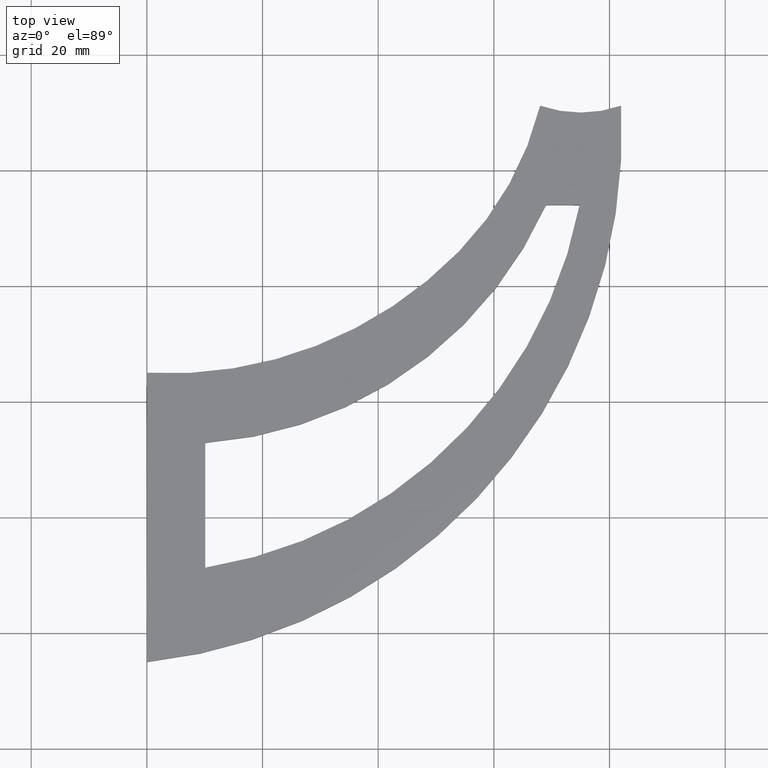
[diagram: clean part render]
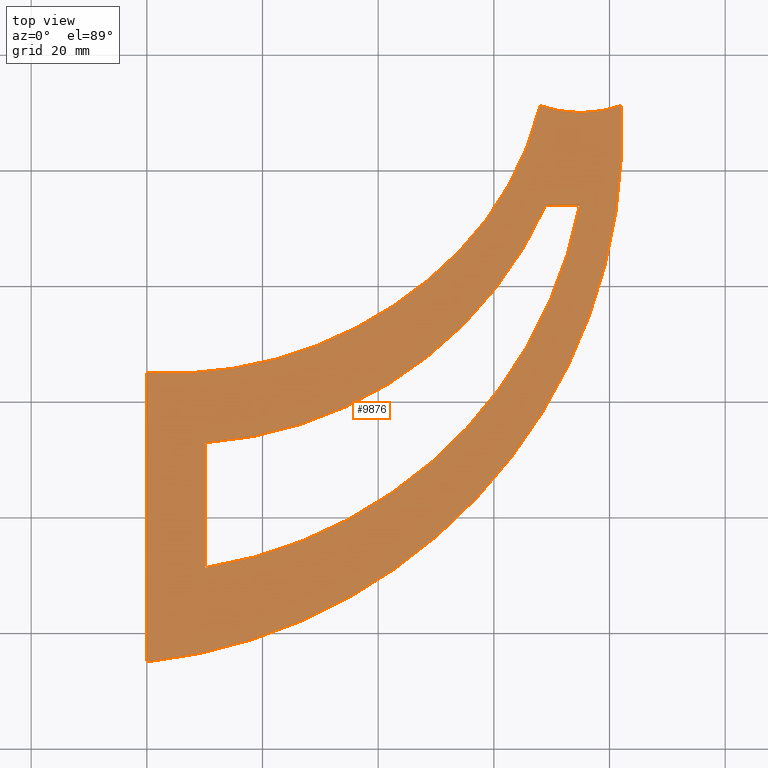
[diagram: same view with one face highlighted and labeled with its STEP entity id]
A machine part, top view. The second image highlights one B-rep face of the part: STEP entity #9876.
In plain terms, the highlighted planar face has unit normal (-0, 0, 1).
Its self-contained STEP definition (entity closure, byte-faithful):
#76 = EDGE_CURVE ( 'NONE', #7259, #8472, #6269, .T. ) ;
#103 = VERTEX_POINT ( 'NONE', #4812 ) ;
#169 = VECTOR ( 'NONE', #3922, 1000.000000000000000 ) ;
#220 = CARTESIAN_POINT ( 'NONE',  ( 2.220446049250313081E-13, -24.99999999999879918, 2.000000000000000000 ) ) ;
#409 = CARTESIAN_POINT ( 'NONE',  ( 69.01433309437241803, 54.00000000000000711, 2.000000000000000000 ) ) ;
#424 = CARTESIAN_POINT ( 'NONE',  ( 74.81433309437242940, 54.00000000000000711, 2.000000000000000000 ) ) ;
#786 = DIRECTION ( 'NONE',  ( 1.000000000000000000, 0.000000000000000000, 0.000000000000000000 ) ) ;
#887 = EDGE_CURVE ( 'NONE', #7259, #103, #2160, .T. ) ;
#1107 = DIRECTION ( 'NONE',  ( 1.000000000000000000, 0.000000000000000000, 0.000000000000000000 ) ) ;
#1724 = ORIENTED_EDGE ( 'NONE', *, *, #4154, .T. ) ;
#1754 = EDGE_CURVE ( 'NONE', #6150, #11341, #9519, .T. ) ;
#1888 = CIRCLE ( 'NONE', #9805, 21.19999999999999574 ) ;
#1899 = VERTEX_POINT ( 'NONE', #7404 ) ;
#2143 = DIRECTION ( 'NONE',  ( 1.000000000000000000, 0.000000000000000000, 0.000000000000000000 ) ) ;
#2160 = LINE ( 'NONE', #9274, #169 ) ;
#2443 = VERTEX_POINT ( 'NONE', #10656 ) ;
#2565 = DIRECTION ( 'NONE',  ( -0.000000000000000000, 0.000000000000000000, 1.000000000000000000 ) ) ;
#3004 = DIRECTION ( 'NONE',  ( -0.000000000000000000, 0.000000000000000000, 1.000000000000000000 ) ) ;
#3285 = CARTESIAN_POINT ( 'NONE',  ( 81.99999999999997158, 71.18900302333739205, 2.000000000000000000 ) ) ;
#3475 = EDGE_CURVE ( 'NONE', #6150, #9880, #8648, .T. ) ;
#3553 = CARTESIAN_POINT ( 'NONE',  ( 1.110223024625135740E-12, -3.944304526105082560E-26, 2.000000000000000000 ) ) ;
#3564 = CARTESIAN_POINT ( 'NONE',  ( 0.000000000000000000, 0.000000000000000000, 2.000000000000000000 ) ) ;
#3652 = CARTESIAN_POINT ( 'NONE',  ( 5.180452133363093736, 82.72691493104838401, 2.000000000000000000 ) ) ;
#3891 = ORIENTED_EDGE ( 'NONE', *, *, #887, .T. ) ;
#3922 = DIRECTION ( 'NONE',  ( 0.000000000000000000, 1.000000000000000000, -0.000000000000000000 ) ) ;
#3955 = CARTESIAN_POINT ( 'NONE',  ( 3.879352446742994065, 94.89242179660072907, 2.000000000000000000 ) ) ;
#3979 = DIRECTION ( 'NONE',  ( -0.000000000000000000, 0.000000000000000000, 1.000000000000000000 ) ) ;
#4069 = EDGE_LOOP ( 'NONE', ( #7397, #11730, #4600, #6886, #4144 ) ) ;
#4144 = ORIENTED_EDGE ( 'NONE', *, *, #4290, .F. ) ;
#4154 = EDGE_CURVE ( 'NONE', #103, #8905, #9914, .T. ) ;
#4290 = EDGE_CURVE ( 'NONE', #1899, #2443, #7056, .T. ) ;
#4309 = PLANE ( 'NONE',  #8388 ) ;
#4467 = DIRECTION ( 'NONE',  ( 3.552713678800588651E-14, 1.000000000000000000, 0.000000000000000000 ) ) ;
#4543 = CARTESIAN_POINT ( 'NONE',  ( -9.878794471127335441, 66.46807869304582539, 2.000000000000000000 ) ) ;
#4600 = ORIENTED_EDGE ( 'NONE', *, *, #3475, .T. ) ;
#4709 = VECTOR ( 'NONE', #4467, 1000.000000000000000 ) ;
#4745 = DIRECTION ( 'NONE',  ( 1.000000000000000000, 0.000000000000000000, 0.000000000000000000 ) ) ;
#4810 = DIRECTION ( 'NONE',  ( 1.000000000000000000, 0.000000000000000000, 0.000000000000000000 ) ) ;
#4812 = CARTESIAN_POINT ( 'NONE',  ( 10.09999999999999787, 12.90000000000000391, 2.000000000000000000 ) ) ;
#4909 = EDGE_CURVE ( 'NONE', #2443, #9880, #1888, .T. ) ;
#4927 = LINE ( 'NONE', #6565, #10182 ) ;
#5170 = AXIS2_PLACEMENT_3D ( 'NONE', #3652, #8020, #7151 ) ;
#5265 = DIRECTION ( 'NONE',  ( 1.000000000000000000, 0.000000000000000000, 0.000000000000000000 ) ) ;
#5458 = DIRECTION ( 'NONE',  ( 1.000000000000000000, 0.000000000000000000, 0.000000000000000000 ) ) ;
#5742 = AXIS2_PLACEMENT_3D ( 'NONE', #3955, #3979, #4810 ) ;
#6123 = ORIENTED_EDGE ( 'NONE', *, *, #76, .F. ) ;
#6143 = CARTESIAN_POINT ( 'NONE',  ( 74.99999999999998579, 91.20000000000000284, 2.000000000000000000 ) ) ;
#6150 = VERTEX_POINT ( 'NONE', #220 ) ;
#6269 = CIRCLE ( 'NONE', #9784, 78.50000000000000000 ) ;
#6565 = CARTESIAN_POINT ( 'NONE',  ( 0.000000000000000000, 54.00000000000000711, 2.000000000000000000 ) ) ;
#6886 = ORIENTED_EDGE ( 'NONE', *, *, #4909, .F. ) ;
#6894 = FACE_OUTER_BOUND ( 'NONE', #4069, .T. ) ;
#7028 = DIRECTION ( 'NONE',  ( -0.000000000000000000, 0.000000000000000000, 1.000000000000000000 ) ) ;
#7056 = CIRCLE ( 'NONE', #8369, 55.00000000000000711 ) ;
#7147 = CARTESIAN_POINT ( 'NONE',  ( 1.998401444325281773E-12, 24.99999999999996803, 2.000000000000000000 ) ) ;
#7151 = DIRECTION ( 'NONE',  ( 1.000000000000000000, 0.000000000000000000, 0.000000000000000000 ) ) ;
#7259 = VERTEX_POINT ( 'NONE', #11289 ) ;
#7397 = ORIENTED_EDGE ( 'NONE', *, *, #11594, .F. ) ;
#7404 = CARTESIAN_POINT ( 'NONE',  ( 53.97457268643530881, 45.99999999999996447, 2.000000000000000000 ) ) ;
#8020 = DIRECTION ( 'NONE',  ( -0.000000000000000000, 0.000000000000000000, 1.000000000000000000 ) ) ;
#8033 = FACE_BOUND ( 'NONE', #9323, .T. ) ;
#8304 = CARTESIAN_POINT ( 'NONE',  ( -2.274320155918185815, 68.81855391245915143, 2.000000000000000000 ) ) ;
#8369 = AXIS2_PLACEMENT_3D ( 'NONE', #10097, #9308, #4745 ) ;
#8388 = AXIS2_PLACEMENT_3D ( 'NONE', #3564, #2565, #5265 ) ;
#8472 = VERTEX_POINT ( 'NONE', #424 ) ;
#8648 = CIRCLE ( 'NONE', #8891, 91.99999999999938893 ) ;
#8885 = CIRCLE ( 'NONE', #5742, 69.99999999999997158 ) ;
#8891 = AXIS2_PLACEMENT_3D ( 'NONE', #4543, #9926, #5458 ) ;
#8905 = VERTEX_POINT ( 'NONE', #409 ) ;
#9274 = CARTESIAN_POINT ( 'NONE',  ( 10.09999999999999964, 0.000000000000000000, 2.000000000000000000 ) ) ;
#9308 = DIRECTION ( 'NONE',  ( -0.000000000000000000, 0.000000000000000000, 1.000000000000000000 ) ) ;
#9323 = EDGE_LOOP ( 'NONE', ( #1724, #10966, #6123, #3891 ) ) ;
#9519 = LINE ( 'NONE', #3553, #4709 ) ;
#9784 = AXIS2_PLACEMENT_3D ( 'NONE', #8304, #3004, #2143 ) ;
#9805 = AXIS2_PLACEMENT_3D ( 'NONE', #6143, #7028, #786 ) ;
#9876 = ADVANCED_FACE ( 'NONE', ( #8033, #6894 ), #4309, .T. ) ;
#9880 = VERTEX_POINT ( 'NONE', #3285 ) ;
#9914 = CIRCLE ( 'NONE', #5170, 69.99999999999998579 ) ;
#9926 = DIRECTION ( 'NONE',  ( -0.000000000000000000, 0.000000000000000000, 1.000000000000000000 ) ) ;
#10077 = EDGE_CURVE ( 'NONE', #8905, #8472, #4927, .T. ) ;
#10097 = CARTESIAN_POINT ( 'NONE',  ( 14.61404249810564338, 84.41547426875771976, 2.000000000000000000 ) ) ;
#10182 = VECTOR ( 'NONE', #1107, 1000.000000000000000 ) ;
#10656 = CARTESIAN_POINT ( 'NONE',  ( 68.00000000000000000, 71.18900302333739205, 2.000000000000000000 ) ) ;
#10966 = ORIENTED_EDGE ( 'NONE', *, *, #10077, .T. ) ;
#11289 = CARTESIAN_POINT ( 'NONE',  ( 10.09999999999999964, -8.700000000000001066, 2.000000000000000000 ) ) ;
#11341 = VERTEX_POINT ( 'NONE', #7147 ) ;
#11594 = EDGE_CURVE ( 'NONE', #11341, #1899, #8885, .T. ) ;
#11730 = ORIENTED_EDGE ( 'NONE', *, *, #1754, .F. ) ;